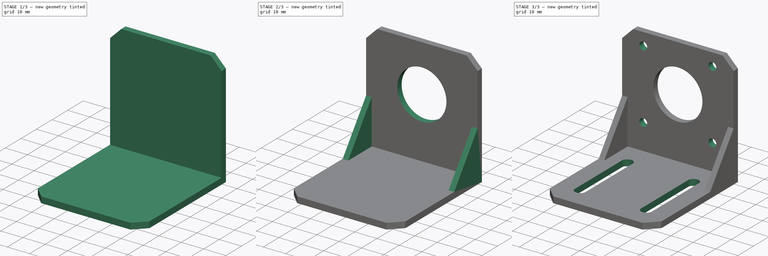
[diagram: build sequence overview — one tinted view per stage of 3, left to right]
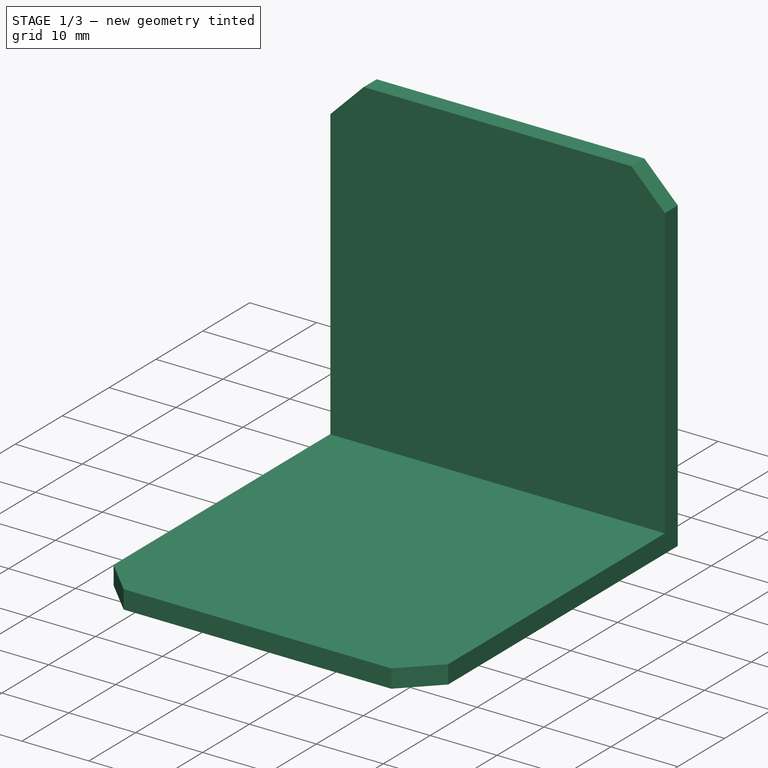
[diagram: stage 1 of 3 — iso view after this stage's code; geometry added in this stage tinted green]
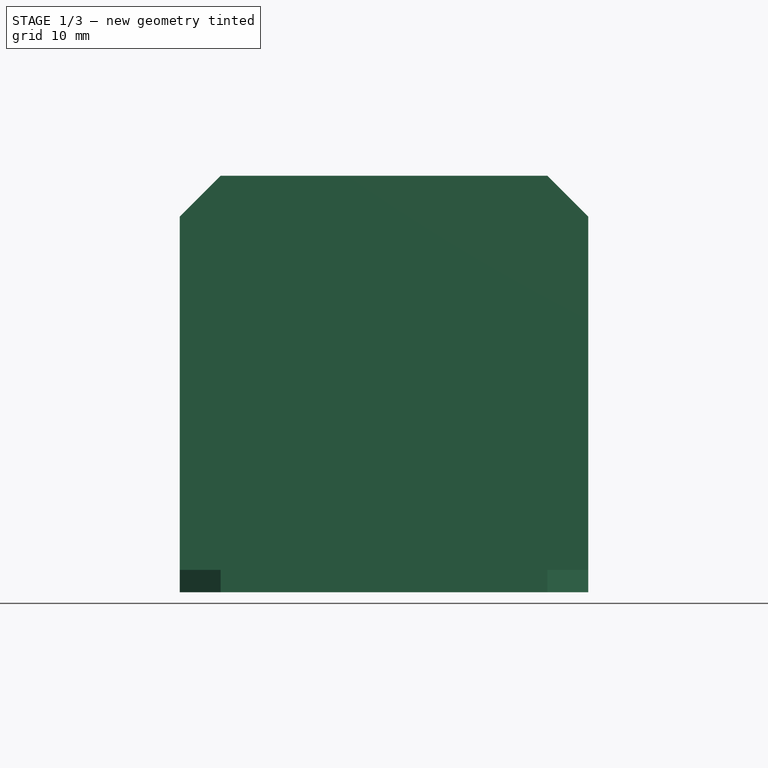
[diagram: stage 1 of 3 — front view after this stage's code; geometry added in this stage tinted green]
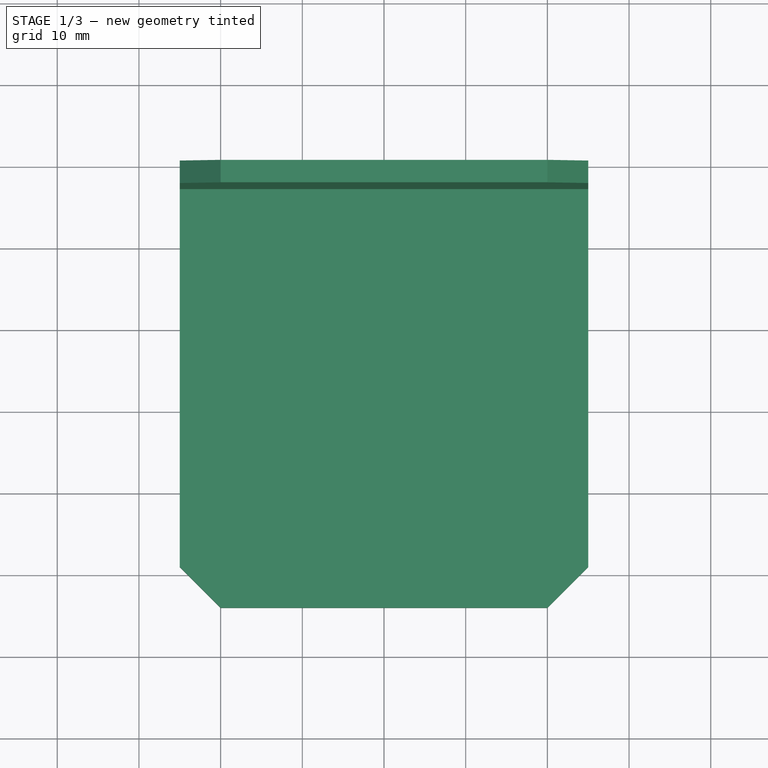
[diagram: stage 1 of 3 — top view after this stage's code; geometry added in this stage tinted green]
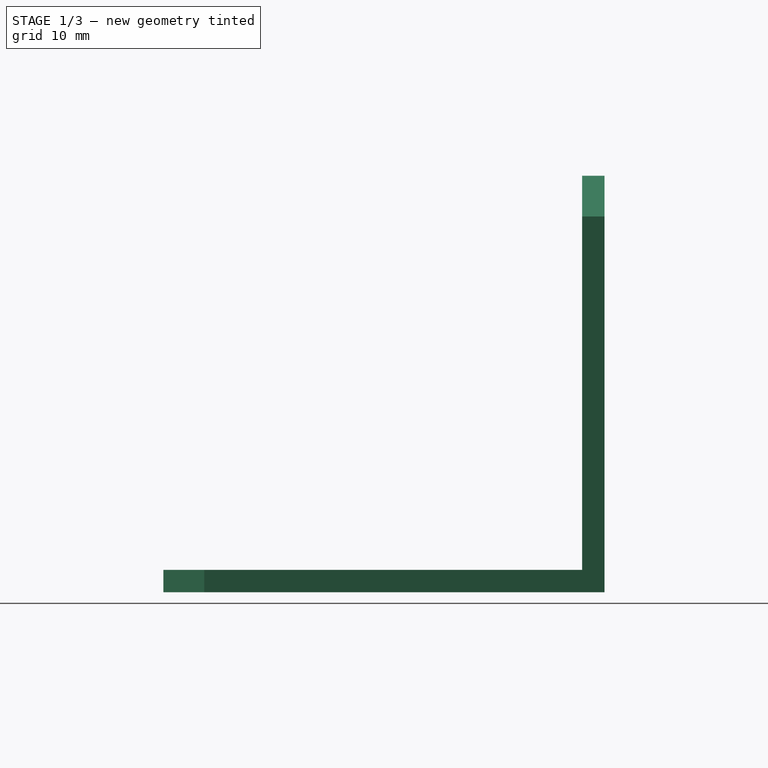
[diagram: stage 1 of 3 — right view after this stage's code; geometry added in this stage tinted green]
FCSTD DOCUMENT  (FreeCAD 1.0R39109 (Git))
Label: stepper_bracket
License: All rights reserved
LicenseURL: https://en.wikipedia.org/wiki/All_rights_reserved
objects: Sketcher::SketchObject×5, PartDesign::Pad×2, PartDesign::Pocket×2, PartDesign::Chamfer×1, PartDesign::Mirrored×1, PartDesign::Hole×1, PartDesign::Body×1
note: 31 computed .brp shape members not serialized (recipe doc carries the construction recipe); baked Part::Feature solids carry a one-line shape summary decoded from their .brp

FEATURE [Sketcher::SketchObject] Sketch
  ArcFitTolerance = 1e-06
  AttachmentSupport = -> [YZ_Plane]
  FullyConstrained = true
  MakeInternals = false
  MapMode = 5
  Placement = pos=(0,0,0) rot=(0.57735,0.57735,0.57735;2.0944rad)
  sketch-geometry (6):
    g0: LineSegment StartX=0 StartY=51 StartZ=0 EndX=0 EndY=0 EndZ=0
    g1: LineSegment StartX=0 StartY=0 StartZ=0 EndX=-54 EndY=0 EndZ=0
    g2: LineSegment StartX=-54 StartY=0 StartZ=0 EndX=-54 EndY=2.75 EndZ=0
    g3: LineSegment StartX=-54 StartY=2.75 StartZ=0 EndX=-2.75 EndY=2.75 EndZ=0
    g4: LineSegment StartX=-2.75 StartY=2.75 StartZ=0 EndX=-2.75 EndY=51 EndZ=0
    g5: LineSegment StartX=-2.75 StartY=51 StartZ=0 EndX=0 EndY=51 EndZ=0
  constraints (17):
    c: PointOnObject(g0,g-2)
    c: Coincident(g0,g-1)
    c: Coincident(g0,g1)
    c: PointOnObject(g1,g-1)
    c: Coincident(g1,g2)
    c: Coincident(g2,g3)
    c: Horizontal(g3)
    c: Coincident(g3,g4)
    c: Vertical(g4)
    c: Coincident(g4,g5)
    c: Coincident(g5,g0)
    c: Horizontal(g5)
    c: Vertical(g2)
    c: Distance(g1,g3) = 2.75
    c: Distance(g0,g4) = 2.75
    c: Distance(g1,g5) = 51
    c: Distance(g2,g0) = 54
FEATURE [PartDesign::Pad] Pad
  Direction = (1,0,0)
  Length = 50
  Length2 = 10
  Midplane = true
  Placement = pos=(0,0,0) rot=(1,1,1;2.0944rad)
  Profile = -> Sketch
  ReferenceAxis = -> Sketch [N_Axis]
  Refine = true
  Suppressed = false
  Type = 0
FEATURE [PartDesign::Chamfer] Chamfer
  Angle = 45
  Base = -> Pad [Edge18,Edge17,Edge10,Edge9]
  BaseFeature = -> Pad
  ChamferType = 0
  FlipDirection = false
  Placement = pos=(0,0,0) rot=(1,1,1;2.0944rad)
  Refine = true
  Size = 5
  Size2 = 1
  SupportTransform = false
  Suppressed = false
  UseAllEdges = false
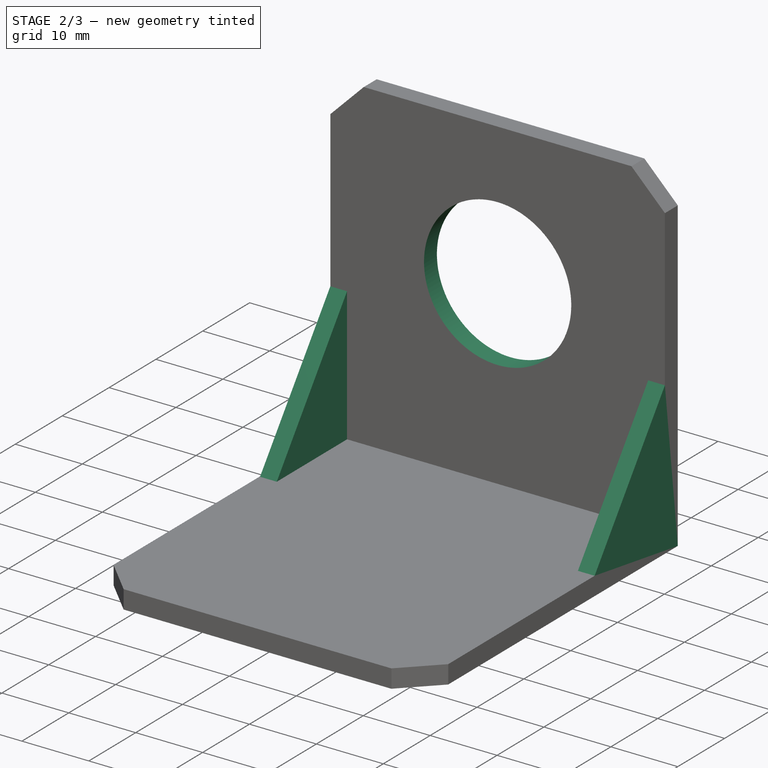
[diagram: stage 2 of 3 — iso view after this stage's code; geometry added in this stage tinted green]
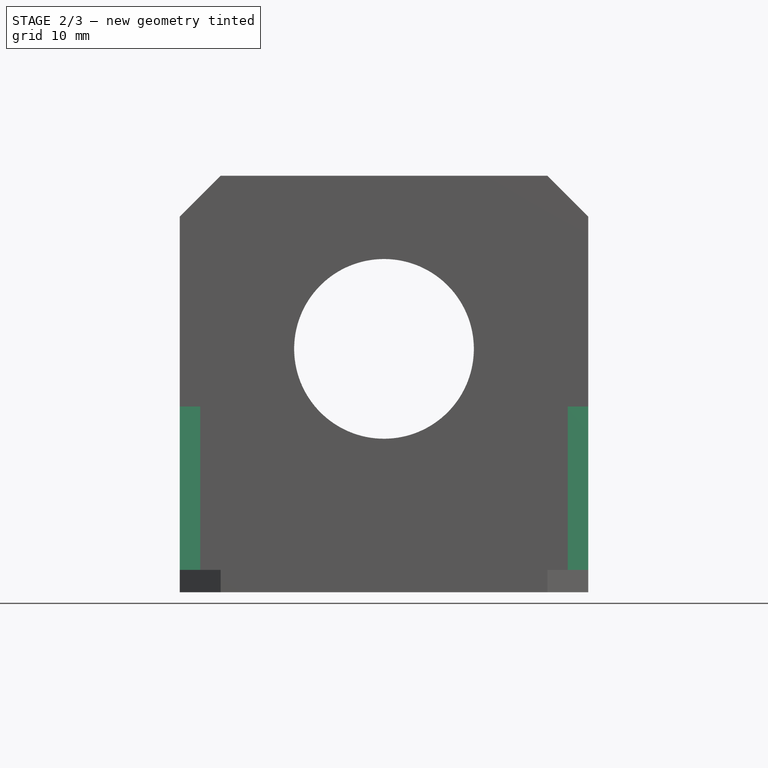
[diagram: stage 2 of 3 — front view after this stage's code; geometry added in this stage tinted green]
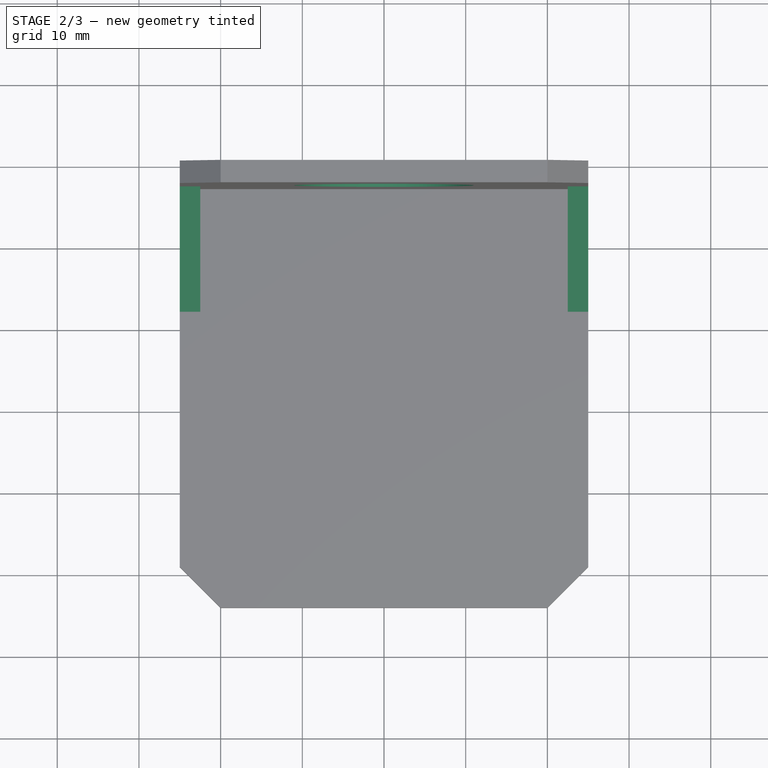
[diagram: stage 2 of 3 — top view after this stage's code; geometry added in this stage tinted green]
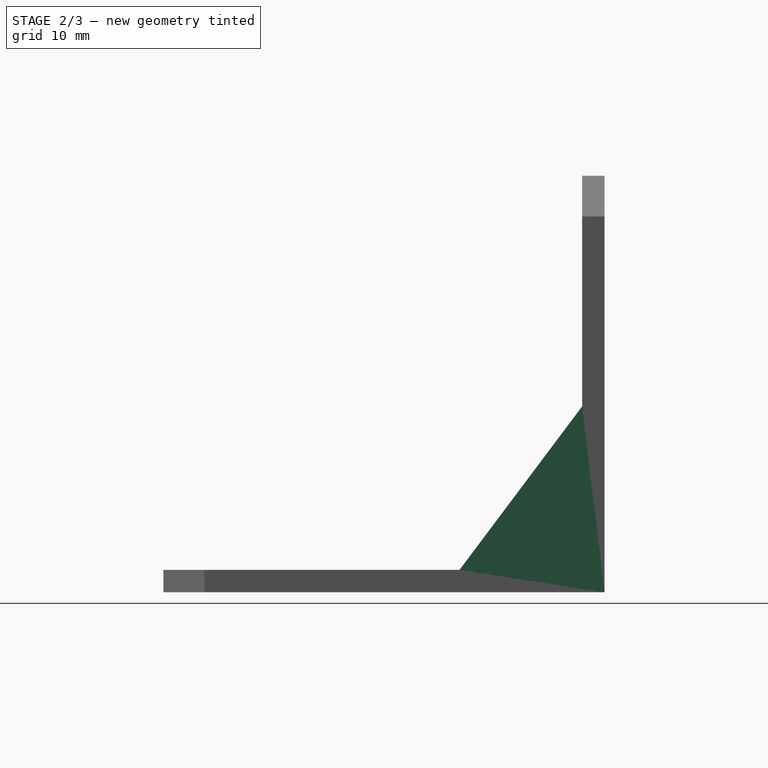
[diagram: stage 2 of 3 — right view after this stage's code; geometry added in this stage tinted green]
FEATURE [Sketcher::SketchObject] Sketch001
  ArcFitTolerance = 1e-06
  AttachmentSupport = -> [Chamfer]
  ExternalGeometry = -> [Chamfer]
  FullyConstrained = true
  MakeInternals = false
  MapMode = 5
  Placement = pos=(25,-5.6e-15,2.8e-15) rot=(0.57735,0.57735,0.57735;2.0944rad)
  sketch-geometry (3):
    g0: LineSegment StartX=-2.75 StartY=2.75 StartZ=0 EndX=-2.75 EndY=22.75 EndZ=0
    g1: LineSegment StartX=-2.75 StartY=22.75 StartZ=0 EndX=-17.75 EndY=2.75 EndZ=0
    g2: LineSegment StartX=-17.75 StartY=2.75 StartZ=0 EndX=-2.75 EndY=2.75 EndZ=0
  constraints (8):
    c: Coincident(g-4,g0)
    c: PointOnObject(g0,g-4)
    c: Coincident(g0,g1)
    c: PointOnObject(g1,g-3)
    c: Coincident(g1,g2)
    c: Coincident(g2,g0)
    c: DistanceY(g0,g0) = 20
    c: DistanceX(g2,g2) = 15
FEATURE [PartDesign::Pad] Pad001
  BaseFeature = -> Chamfer
  Direction = (1,0,0)
  Length = 2.5
  Length2 = 10
  Placement = pos=(0,0,0) rot=(1,1,1;2.0944rad)
  Profile = -> Sketch001
  ReferenceAxis = -> Sketch001 [N_Axis]
  Refine = true
  Reversed = true
  Suppressed = false
  Type = 0
FEATURE [PartDesign::Mirrored] Mirrored
  BaseFeature = -> Pad001
  MirrorPlane = -> YZ_Plane
  Originals = -> [Pad001]
  Placement = pos=(0,0,0) rot=(1,1,1;2.0944rad)
  Refine = true
  Suppressed = false
  TransformMode = 0
FEATURE [Sketcher::SketchObject] Sketch002
  ArcFitTolerance = 1e-06
  AttachmentSupport = -> [Mirrored]
  ExternalGeometry = -> [Mirrored]
  FullyConstrained = true
  MakeInternals = false
  MapMode = 5
  Placement = pos=(-6e-16,-2.75,1.2e-15) rot=(0.57735,0.57735,-0.57735;2.0944rad)
  sketch-geometry (4):
    g0: Circle CenterX=-29.8 CenterY=0 CenterZ=0 NormalX=0 NormalY=0 NormalZ=1 AngleXU=0 Radius=11
    g1: LineSegment [constr] StartX=-40.8 StartY=-1.8e-14 StartZ=0 EndX=-51 EndY=-1.8e-14 EndZ=0
    g2: LineSegment [constr] StartX=-29.8 StartY=0 StartZ=0 EndX=-29.8 EndY=25 EndZ=0
    g3: LineSegment [constr] StartX=-29.8 StartY=0 StartZ=0 EndX=-29.8 EndY=-25 EndZ=0
  constraints (12):
    c: PointOnObject(g0,g-1)
    c: Diameter(g0) = 22
    c: PointOnObject(g1,g0)
    c: Symmetric(g-4,g-4,g1)
    c: Horizontal(g1)
    c: DistanceX(g1,g1) = 10.2
    c: Coincident(g2,g0)
    c: PointOnObject(g2,g-3)
    c: Vertical(g2)
    c: Coincident(g3,g0)
    c: PointOnObject(g3,g-5)
    c: Vertical(g3)
FEATURE [PartDesign::Pocket] Pocket
  BaseFeature = -> Mirrored
  Direction = (0,1,0)
  Length = 5
  Length2 = 5
  Placement = pos=(0,0,0) rot=(1,1,1;2.0944rad)
  Profile = -> Sketch002
  ReferenceAxis = -> Sketch002 [N_Axis]
  Refine = true
  Suppressed = false
  Type = 0
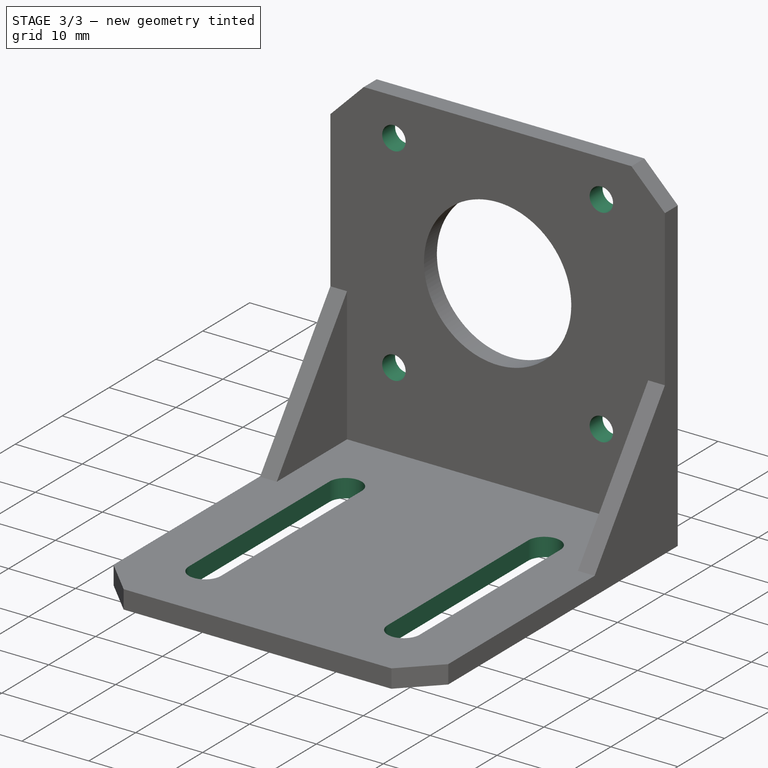
[diagram: stage 3 of 3 — iso view after this stage's code; geometry added in this stage tinted green]
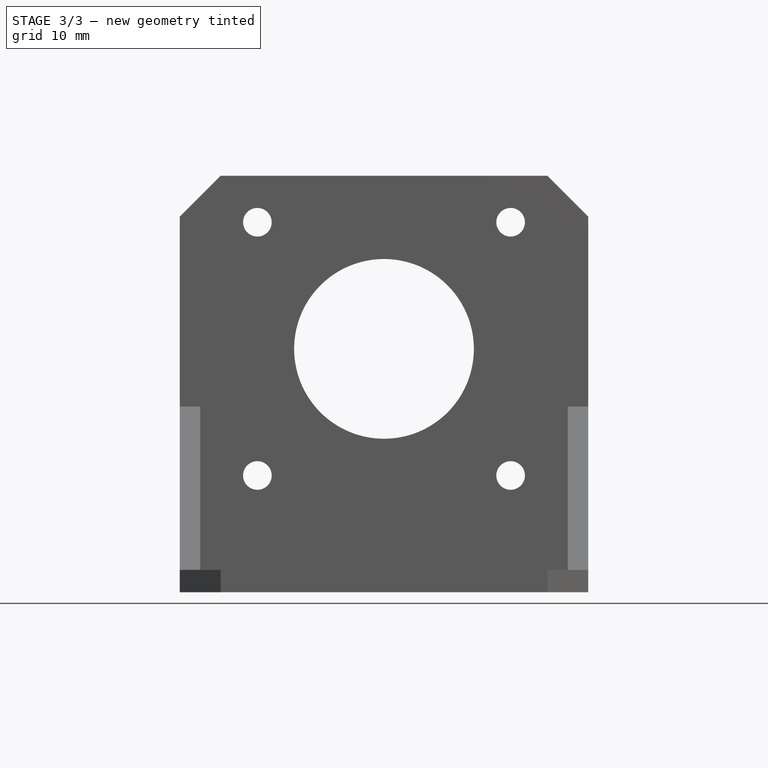
[diagram: stage 3 of 3 — front view after this stage's code; geometry added in this stage tinted green]
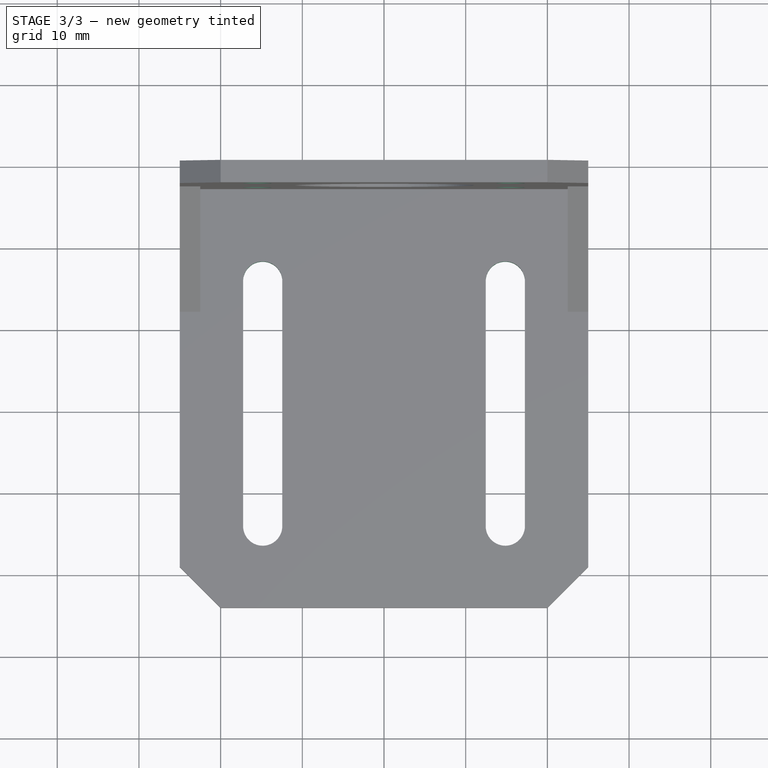
[diagram: stage 3 of 3 — top view after this stage's code; geometry added in this stage tinted green]
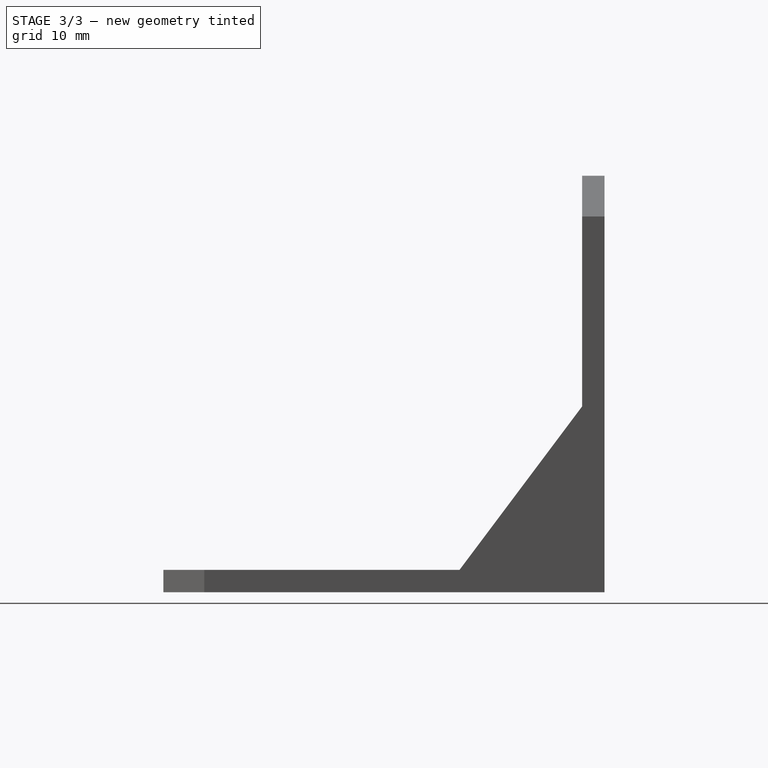
[diagram: stage 3 of 3 — right view after this stage's code; geometry added in this stage tinted green]
FEATURE [Sketcher::SketchObject] Sketch003
  ArcFitTolerance = 1e-06
  AttachmentSupport = -> [Pocket]
  ExternalGeometry = -> [Pocket]
  FullyConstrained = true
  MakeInternals = false
  MapMode = 5
  Placement = pos=(-6e-16,-2.75,2.1e-15) rot=(0.57735,0.57735,-0.57735;2.0944rad)
  sketch-geometry (9):
    g0: LineSegment [constr] StartX=-45.3 StartY=-15.5 StartZ=0 EndX=-14.3 EndY=-15.5 EndZ=0
    g1: LineSegment [constr] StartX=-14.3 StartY=-15.5 StartZ=0 EndX=-14.3 EndY=15.5 EndZ=0
    g2: LineSegment [constr] StartX=-14.3 StartY=15.5 StartZ=0 EndX=-45.3 EndY=15.5 EndZ=0
    g3: LineSegment [constr] StartX=-45.3 StartY=15.5 StartZ=0 EndX=-45.3 EndY=-15.5 EndZ=0
    g4: GeomPoint [constr] X=-29.8 Y=-9.9e-15 Z=0
    g5: Circle CenterX=-45.3 CenterY=15.5 CenterZ=0 NormalX=0 NormalY=0 NormalZ=1 AngleXU=0 Radius=1.5
    g6: Circle CenterX=-14.3 CenterY=15.5 CenterZ=0 NormalX=0 NormalY=0 NormalZ=1 AngleXU=0 Radius=1.5
    g7: Circle CenterX=-14.3 CenterY=-15.5 CenterZ=0 NormalX=0 NormalY=0 NormalZ=1 AngleXU=0 Radius=1.5
    g8: Circle CenterX=-45.3 CenterY=-15.5 CenterZ=0 NormalX=0 NormalY=0 NormalZ=1 AngleXU=0 Radius=1.5
  constraints (20):
    c: Coincident(g0,g1)
    c: Coincident(g1,g2)
    c: Coincident(g2,g3)
    c: Coincident(g3,g0)
    c: Horizontal(g0)
    c: Horizontal(g2)
    c: Vertical(g1)
    c: Vertical(g3)
    c: Symmetric(g2,g0,g4)
    c: Coincident(g4,g-3)
    c: Equal(g1,g2)
    c: DistanceY(g3,g3) = 31
    c: Coincident(g5,g2)
    c: Coincident(g6,g1)
    c: Coincident(g7,g0)
    c: Coincident(g8,g0)
    c: Equal(g5,g6)
    c: Equal(g6,g7)
    c: Equal(g7,g8)
    c: Diameter(g5) = 3
FEATURE [PartDesign::Hole] Hole
  BaseFeature = -> Pocket
  CustomThreadClearance = 0
  Depth = 25
  DepthType = 0
  Diameter = 3.5
  DrillForDepth = false
  DrillPoint = 1
  DrillPointAngle = 118
  HoleCutCountersinkAngle = 90
  HoleCutCustomValues = false
  HoleCutDepth = 0
  HoleCutDiameter = 6.1
  HoleCutType = 0
  ModelThread = false
  Placement = pos=(0,0,0) rot=(1,1,1;2.0944rad)
  Profile = -> Sketch003
  Refine = true
  Suppressed = false
  Tapered = false
  TaperedAngle = 90
  ThreadClass = 0
  ThreadDepth = 25
  ThreadDepthType = 0
  ThreadDirection = 0
  ThreadFit = 0
  ThreadSize = 0
  ThreadType = 0
  Threaded = false
  UseCustomThreadClearance = false
FEATURE [Sketcher::SketchObject] Sketch004
  ArcFitTolerance = 1e-06
  AttachmentSupport = -> [Hole]
  ExternalGeometry = -> [Hole]
  FullyConstrained = true
  MakeInternals = false
  MapMode = 5
  Placement = pos=(-3.1e-15,1.8e-15,2.75) rot=(0,0,-1;1.5708rad)
  sketch-geometry (8):
    g0: ArcOfCircle CenterX=14 CenterY=14.85 CenterZ=0 NormalX=0 NormalY=0 NormalZ=1 AngleXU=0 Radius=2.4 StartAngle=1.5708 EndAngle=4.71239
    g1: ArcOfCircle CenterX=44 CenterY=14.85 CenterZ=0 NormalX=0 NormalY=0 NormalZ=1 AngleXU=0 Radius=2.4 StartAngle=4.71239 EndAngle=7.85398
    g2: LineSegment StartX=14 StartY=17.25 StartZ=0 EndX=44 EndY=17.25 EndZ=0
    g3: LineSegment StartX=14 StartY=12.45 StartZ=0 EndX=44 EndY=12.45 EndZ=0
    g4: ArcOfCircle CenterX=14 CenterY=-14.85 CenterZ=0 NormalX=0 NormalY=0 NormalZ=1 AngleXU=0 Radius=2.4 StartAngle=1.5708 EndAngle=4.71239
    g5: ArcOfCircle CenterX=44 CenterY=-14.85 CenterZ=0 NormalX=0 NormalY=0 NormalZ=1 AngleXU=0 Radius=2.4 StartAngle=4.71239 EndAngle=7.85398
    g6: LineSegment StartX=14 StartY=-12.45 StartZ=0 EndX=44 EndY=-12.45 EndZ=0
    g7: LineSegment StartX=14 StartY=-17.25 StartZ=0 EndX=44 EndY=-17.25 EndZ=0
  constraints (20):
    c: Tangent(g0,g2) = 1.5708
    c: Tangent(g0,g3) = -1.5708
    c: Tangent(g1,g2) = 1.5708
    c: Tangent(g1,g3) = -1.5708
    c: Equal(g0,g1)
    c: Horizontal(g2)
    c: Tangent(g4,g6) = 1.5708
    c: Tangent(g4,g7) = -1.5708
    c: Tangent(g5,g6) = 1.5708
    c: Tangent(g5,g7) = -1.5708
    c: Equal(g4,g5)
    c: Horizontal(g6)
    c: Vertical(g1,g5)
    c: Vertical(g0,g4)
    c: Distance(g2,g3) = 4.8
    c: Distance(g6,g7) = 4.8
    c: Distance(g-3,g2) = 7.75
    c: Distance(g-5,g7) = 7.75
    c: DistanceX(g0,g1) = 30
    c: Distance(g1,g-4) = 10
FEATURE [PartDesign::Pocket] Pocket001
  BaseFeature = -> Hole
  Direction = (1.1e-15,0,-1)
  Length = 5
  Length2 = 5
  Placement = pos=(0,0,0) rot=(1,1,1;2.0944rad)
  Profile = -> Sketch004
  ReferenceAxis = -> Sketch004 [N_Axis]
  Refine = true
  Suppressed = false
  Type = 0
FEATURE [PartDesign::Body] Body
  AllowCompound = false
  Group = -> [Sketch,Pad,Chamfer,Sketch001,Pad001,Mirrored,Sketch002,Pocket,Sketch003,Hole,Sketch004,Pocket001]
  Origin = -> Origin
  Tip = -> Pocket001
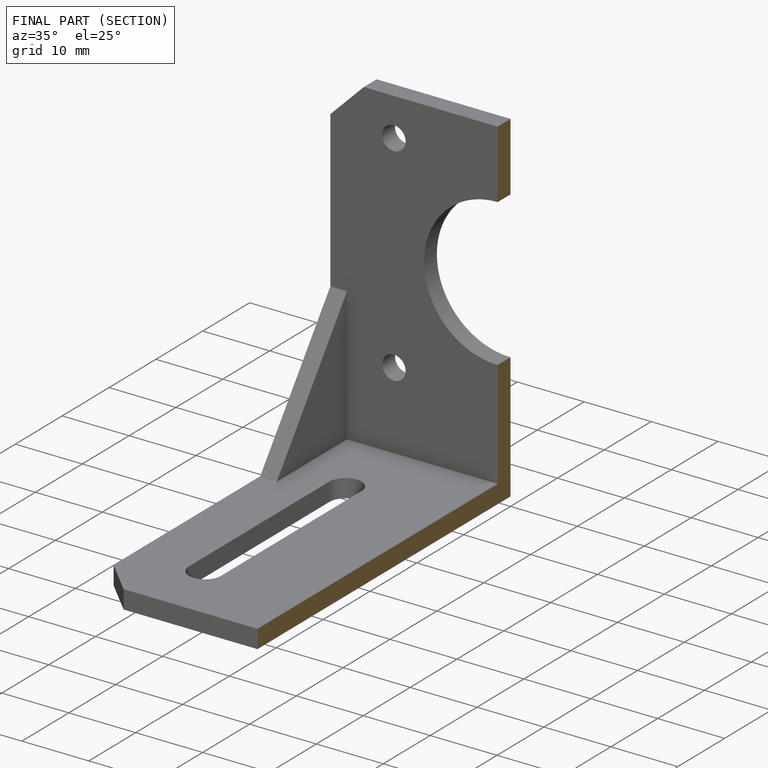
[diagram: finished part — half-section view (interior)]
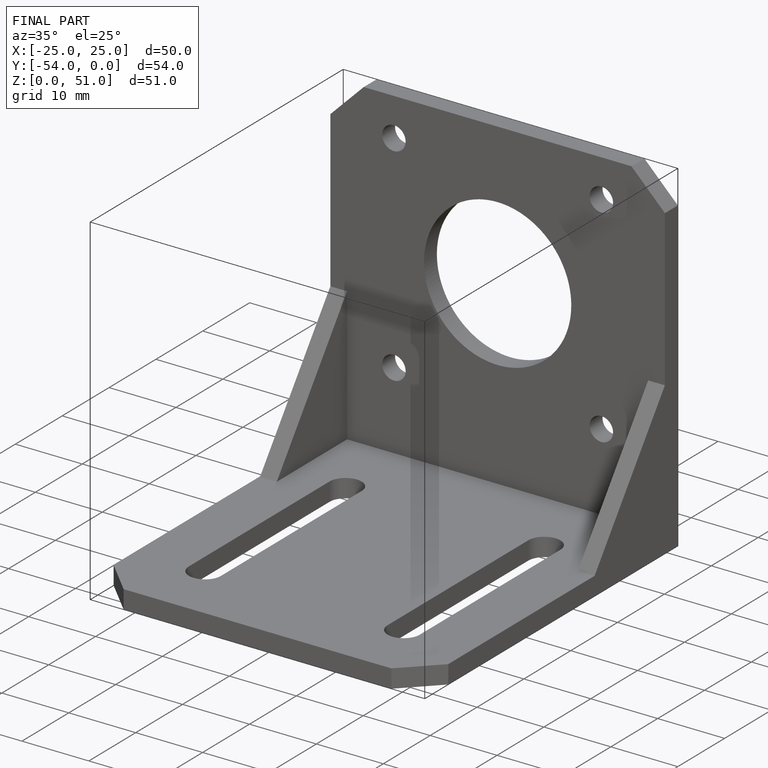
[diagram: finished part — iso view with bounding-box wireframe]
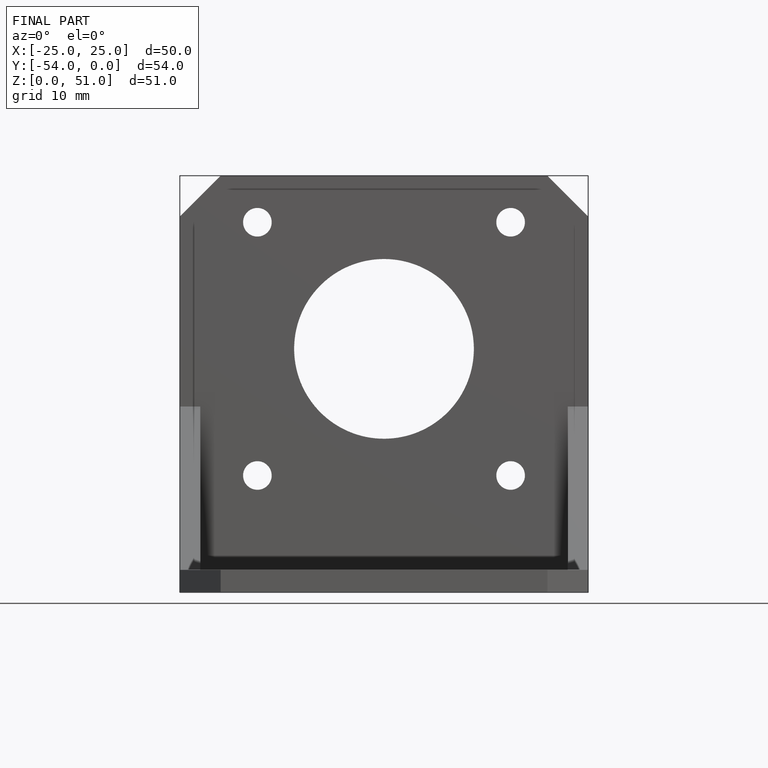
[diagram: finished part — front view with bounding-box wireframe]
